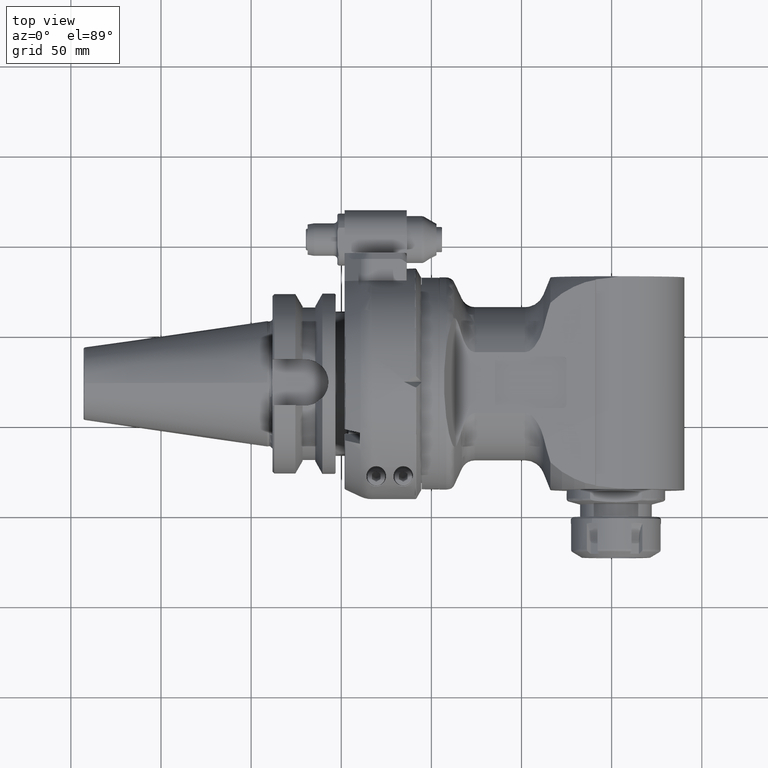
[diagram: clean part render]
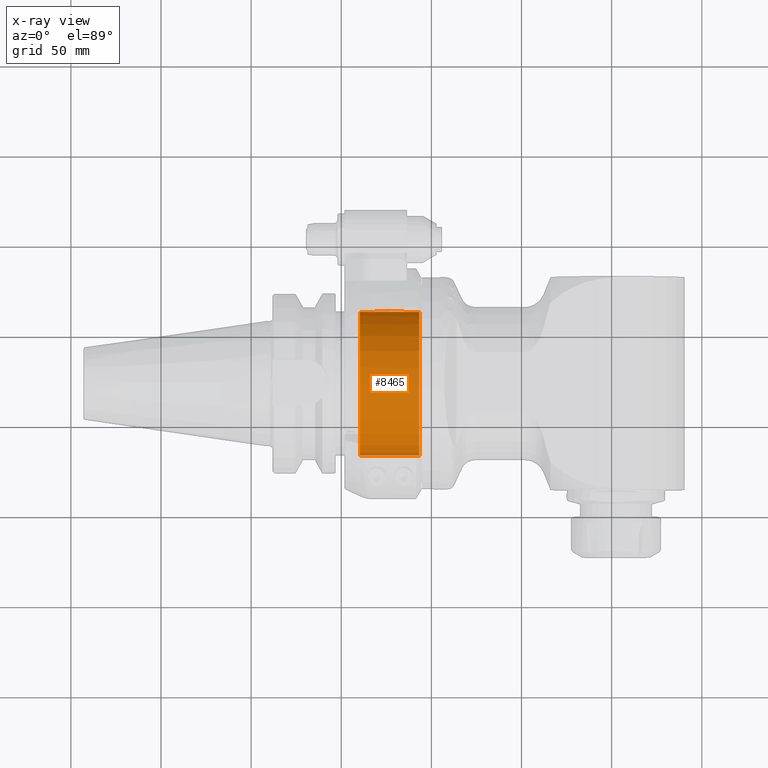
[diagram: x-ray — body ghosted, one internal face saturated and labeled with its STEP entity id]
A machine part, top view, then the same camera in x-ray: the body is ghosted and one INTERNAL B-rep face — a face not visible from any outside direction — is saturated and labeled: STEP entity #8465.
In plain terms, the highlighted cylindrical surface (partial cylindrical patch) has radius 40 mm, axis along (1, 0, 0).
Its self-contained STEP definition (entity closure, byte-faithful):
#328=CYLINDRICAL_SURFACE('',#9074,40.);
#579=CIRCLE('',#9064,40.);
#584=CIRCLE('',#9075,40.);
#585=CIRCLE('',#9076,40.);
#586=CIRCLE('',#9077,40.);
#1015=FACE_OUTER_BOUND('',#1539,.T.);
#1539=EDGE_LOOP('',(#5711,#5712,#5713,#5714,#5715,#5716,#5717,#5718));
#2267=LINE('',#12742,#2815);
#2275=LINE('',#12834,#2823);
#2288=LINE('',#13026,#2836);
#2292=LINE('',#13036,#2840);
#2815=VECTOR('',#10062,32.99999976923);
#2823=VECTOR('',#10092,32.99999976923);
#2836=VECTOR('',#10151,8.499999538462);
#2840=VECTOR('',#10161,8.499999538462);
#3386=VERTEX_POINT('',#12739);
#3387=VERTEX_POINT('',#12741);
#3401=VERTEX_POINT('',#12831);
#3402=VERTEX_POINT('',#12833);
#3421=VERTEX_POINT('',#12961);
#3431=VERTEX_POINT('',#13025);
#3433=VERTEX_POINT('',#13033);
#3434=VERTEX_POINT('',#13035);
#4269=EDGE_CURVE('',#3387,#3386,#2267,.T.);
#4290=EDGE_CURVE('',#3402,#3401,#2275,.T.);
#4315=EDGE_CURVE('',#3402,#3421,#579,.T.);
#4330=EDGE_CURVE('',#3431,#3421,#2288,.T.);
#4334=EDGE_CURVE('',#3387,#3401,#584,.T.);
#4335=EDGE_CURVE('',#3433,#3386,#585,.T.);
#4336=EDGE_CURVE('',#3433,#3434,#2292,.T.);
#4337=EDGE_CURVE('',#3431,#3434,#586,.T.);
#5711=ORIENTED_EDGE('',*,*,#4334,.F.);
#5712=ORIENTED_EDGE('',*,*,#4269,.T.);
#5713=ORIENTED_EDGE('',*,*,#4335,.F.);
#5714=ORIENTED_EDGE('',*,*,#4336,.T.);
#5715=ORIENTED_EDGE('',*,*,#4337,.F.);
#5716=ORIENTED_EDGE('',*,*,#4330,.T.);
#5717=ORIENTED_EDGE('',*,*,#4315,.F.);
#5718=ORIENTED_EDGE('',*,*,#4290,.T.);
#8465=ADVANCED_FACE('',(#1015),#328,.F.);
#9064=AXIS2_PLACEMENT_3D('',#12962,#10125,#10126);
#9074=AXIS2_PLACEMENT_3D('',#13031,#10155,#10156);
#9075=AXIS2_PLACEMENT_3D('',#13032,#10157,#10158);
#9076=AXIS2_PLACEMENT_3D('',#13034,#10159,#10160);
#9077=AXIS2_PLACEMENT_3D('',#13037,#10162,#10163);
#10062=DIRECTION('',(-1.,0.,0.));
#10092=DIRECTION('',(1.,0.,0.));
#10125=DIRECTION('center_axis',(1.,0.,0.));
#10126=DIRECTION('ref_axis',(0.,-0.999296627777989,-0.0374999961538496));
#10151=DIRECTION('',(-1.,0.,0.));
#10155=DIRECTION('center_axis',(1.,0.,0.));
#10156=DIRECTION('ref_axis',(0.,1.,-1.22464679914735E-16));
#10157=DIRECTION('center_axis',(-1.,0.,0.));
#10158=DIRECTION('ref_axis',(0.,1.,0.));
#10159=DIRECTION('center_axis',(1.,0.,0.));
#10160=DIRECTION('ref_axis',(0.,0.993651724700361,0.112499999999996));
#10161=DIRECTION('',(1.,0.,0.));
#10162=DIRECTION('center_axis',(1.,0.,0.));
#10163=DIRECTION('ref_axis',(0.,1.,0.));
#12739=CARTESIAN_POINT('',(-28.5,-39.97186511112,1.499999846154));
#12741=CARTESIAN_POINT('',(4.49999976923,-39.97186511112,1.499999846154));
#12742=CARTESIAN_POINT('',(4.49999976923,-39.97186511112,1.499999846154));
#12831=CARTESIAN_POINT('',(4.49999976923,-39.97186511112,-1.499999846154));
#12833=CARTESIAN_POINT('',(-28.5,-39.97186511112,-1.499999846154));
#12834=CARTESIAN_POINT('',(-28.5,-39.97186511112,-1.499999846154));
#12961=CARTESIAN_POINT('',(-28.5,39.74606898801,-4.5));
#12962=CARTESIAN_POINT('Origin',(-28.5,0.,0.));
#13025=CARTESIAN_POINT('',(-20.00000046154,39.74606898801,-4.5));
#13026=CARTESIAN_POINT('',(-20.00000046154,39.74606898801,-4.5));
#13031=CARTESIAN_POINT('Origin',(-15.57692307692,0.,0.));
#13032=CARTESIAN_POINT('Origin',(4.49999976923,0.,0.));
#13033=CARTESIAN_POINT('',(-28.5,39.74606898801,4.5));
#13034=CARTESIAN_POINT('Origin',(-28.5,0.,0.));
#13035=CARTESIAN_POINT('',(-20.00000046154,39.74606898801,4.5));
#13036=CARTESIAN_POINT('',(-28.5,39.74606898801,4.5));
#13037=CARTESIAN_POINT('Origin',(-20.00000046154,0.,0.));